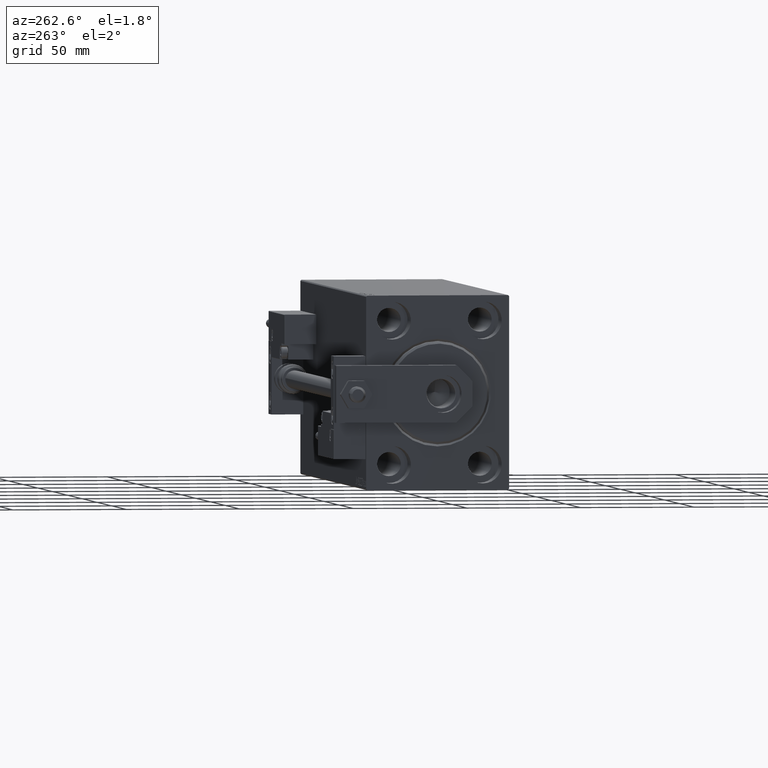
[diagram: clean part render]
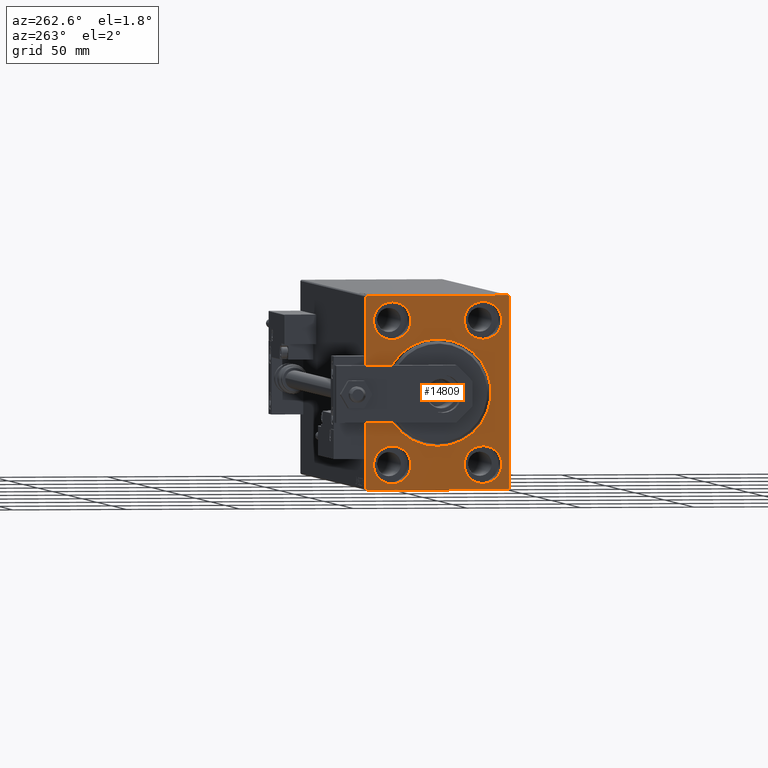
[diagram: same view with one face highlighted and labeled with its STEP entity id]
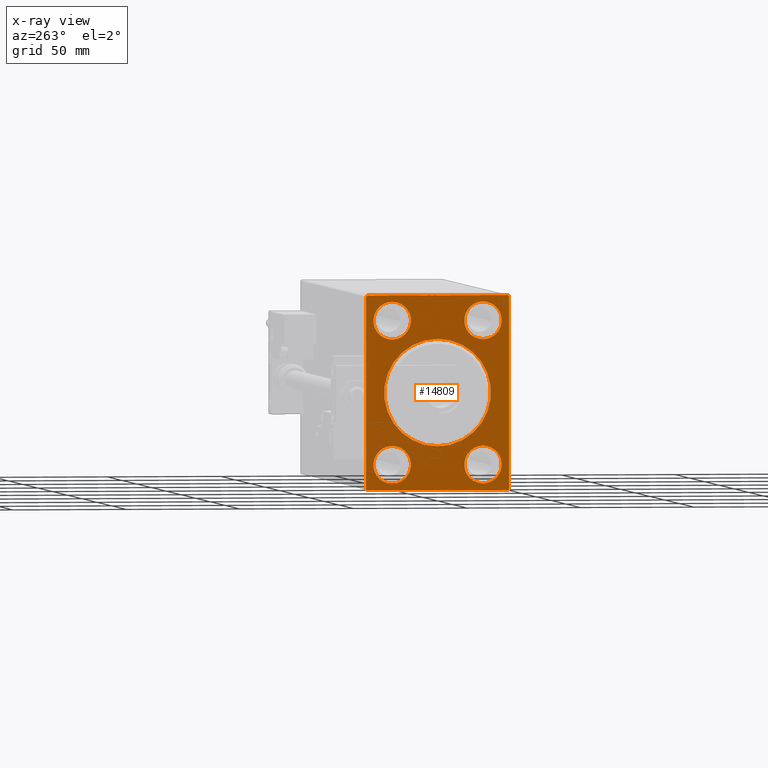
[diagram: x-ray of the same camera — body ghosted, the highlighted face saturated]
A machine part, auxiliary view. The second image highlights one B-rep face of the part: STEP entity #14809.
The next image is the same camera in x-ray: the body ghosted, the highlighted face saturated — about 0% of this face is hidden behind the body in this view.
In plain terms, the highlighted planar face has unit normal (1, 0, 0).
Its self-contained STEP definition (entity closure, byte-faithful):
#28 = ORIENTED_EDGE ( 'NONE', *, *, #15460, .F. ) ;
#555 = CARTESIAN_POINT ( 'NONE',  ( 0.000000000000000000, -31.50000000000000000, 41.99999999999996447 ) ) ;
#578 = AXIS2_PLACEMENT_3D ( 'NONE', #25392, #28918, #36520 ) ;
#850 = CARTESIAN_POINT ( 'NONE',  ( 0.000000000000000000, 31.50000000000000000, 42.50000000000000711 ) ) ;
#1586 = CARTESIAN_POINT ( 'NONE',  ( 0.000000000000000000, 0.000000000000000000, 23.50000000000001776 ) ) ;
#1648 = ORIENTED_EDGE ( 'NONE', *, *, #26885, .F. ) ;
#1669 = AXIS2_PLACEMENT_3D ( 'NONE', #20915, #9540, #13082 ) ;
#2335 = DIRECTION ( 'NONE',  ( 0.000000000000000000, 0.000000000000000000, 1.000000000000000000 ) ) ;
#2502 = DIRECTION ( 'NONE',  ( -1.000000000000000000, 0.000000000000000000, 0.000000000000000000 ) ) ;
#2617 = FACE_BOUND ( 'NONE', #8938, .T. ) ;
#4249 = DIRECTION ( 'NONE',  ( 1.000000000000000000, 0.000000000000000000, 0.000000000000000000 ) ) ;
#5209 = DIRECTION ( 'NONE',  ( 0.000000000000000000, 0.000000000000000000, 1.000000000000000000 ) ) ;
#5306 = DIRECTION ( 'NONE',  ( -0.000000000000000000, -0.7071067811865376918, 0.7071067811865574537 ) ) ;
#5322 = DIRECTION ( 'NONE',  ( -1.000000000000000000, 0.000000000000000000, 0.000000000000000000 ) ) ;
#5425 = LINE ( 'NONE', #39853, #38714 ) ;
#5881 = CARTESIAN_POINT ( 'NONE',  ( 0.000000000000000000, -31.50000000000000000, -41.99999999999999289 ) ) ;
#6444 = CARTESIAN_POINT ( 'NONE',  ( 0.000000000000000000, -20.00000000000000355, -39.74999999999999289 ) ) ;
#6827 = EDGE_CURVE ( 'NONE', #45040, #21046, #5425, .T. ) ;
#7356 = CIRCLE ( 'NONE', #27589, 8.250000000000000000 ) ;
#7618 = ORIENTED_EDGE ( 'NONE', *, *, #36232, .T. ) ;
#7732 = CARTESIAN_POINT ( 'NONE',  ( 0.000000000000000000, -30.99999999999997158, 42.49999999999999289 ) ) ;
#7924 = EDGE_LOOP ( 'NONE', ( #12468, #21613 ) ) ;
#8240 = CARTESIAN_POINT ( 'NONE',  ( 0.000000000000000000, -31.50000000000000000, 41.99999999999996447 ) ) ;
#8938 = EDGE_LOOP ( 'NONE', ( #1648, #33596 ) ) ;
#9030 = DIRECTION ( 'NONE',  ( 0.000000000000000000, 0.000000000000000000, -1.000000000000000000 ) ) ;
#9064 = CARTESIAN_POINT ( 'NONE',  ( 0.000000000000000000, -19.99999999999999645, 23.25000000000000355 ) ) ;
#9498 = CIRCLE ( 'NONE', #578, 8.250000000000000000 ) ;
#9540 = DIRECTION ( 'NONE',  ( -1.000000000000000000, 0.000000000000000000, 0.000000000000000000 ) ) ;
#9716 = AXIS2_PLACEMENT_3D ( 'NONE', #20239, #5322, #13387 ) ;
#9843 = CARTESIAN_POINT ( 'NONE',  ( 0.000000000000000000, -19.99999999999999645, 31.50000000000000000 ) ) ;
#9929 = EDGE_CURVE ( 'NONE', #41654, #32085, #21861, .T. ) ;
#10080 = EDGE_CURVE ( 'NONE', #45040, #28259, #39681, .T. ) ;
#10339 = VERTEX_POINT ( 'NONE', #1586 ) ;
#10361 = VERTEX_POINT ( 'NONE', #32461 ) ;
#10893 = VECTOR ( 'NONE', #35254, 1000.000000000000000 ) ;
#11048 = CIRCLE ( 'NONE', #40963, 8.249999999999992895 ) ;
#11340 = DIRECTION ( 'NONE',  ( 0.000000000000000000, 0.000000000000000000, 1.000000000000000000 ) ) ;
#12468 = ORIENTED_EDGE ( 'NONE', *, *, #34891, .F. ) ;
#12834 = CARTESIAN_POINT ( 'NONE',  ( 0.000000000000000000, 31.50000000000001421, -42.50000000000000711 ) ) ;
#13082 = DIRECTION ( 'NONE',  ( 0.000000000000000000, 0.000000000000000000, 1.000000000000000000 ) ) ;
#13342 = CARTESIAN_POINT ( 'NONE',  ( 0.000000000000000000, 31.00000000000000000, -42.50000000000000711 ) ) ;
#13387 = DIRECTION ( 'NONE',  ( 0.000000000000000000, 0.000000000000000000, 1.000000000000000000 ) ) ;
#13576 = EDGE_LOOP ( 'NONE', ( #42222, #49287 ) ) ;
#13718 = VECTOR ( 'NONE', #26656, 1000.000000000000000 ) ;
#14507 = CARTESIAN_POINT ( 'NONE',  ( 0.000000000000000000, 0.000000000000000000, 0.000000000000000000 ) ) ;
#14572 = VECTOR ( 'NONE', #28286, 1000.000000000000000 ) ;
#14809 = ADVANCED_FACE ( 'NONE', ( #28205, #37290, #28942, #48702, #2617, #44384 ), #21332, .F. ) ;
#15460 = EDGE_CURVE ( 'NONE', #34077, #46590, #26905, .T. ) ;
#15664 = CARTESIAN_POINT ( 'NONE',  ( 0.000000000000000000, 0.000000000000000000, 0.000000000000000000 ) ) ;
#15836 = CARTESIAN_POINT ( 'NONE',  ( 0.000000000000000000, 2.877919977996282293E-15, -23.50000000000001776 ) ) ;
#15905 = DIRECTION ( 'NONE',  ( 1.000000000000000000, 0.000000000000000000, 0.000000000000000000 ) ) ;
#15980 = CARTESIAN_POINT ( 'NONE',  ( 0.000000000000000000, -31.50000000000000000, -42.50000000000000711 ) ) ;
#16021 = VERTEX_POINT ( 'NONE', #7732 ) ;
#16166 = DIRECTION ( 'NONE',  ( 0.000000000000000000, 0.000000000000000000, -1.000000000000000000 ) ) ;
#16810 = VERTEX_POINT ( 'NONE', #36283 ) ;
#16954 = ORIENTED_EDGE ( 'NONE', *, *, #6827, .T. ) ;
#17009 = ORIENTED_EDGE ( 'NONE', *, *, #39090, .F. ) ;
#17180 = AXIS2_PLACEMENT_3D ( 'NONE', #34362, #46276, #11340 ) ;
#17299 = ORIENTED_EDGE ( 'NONE', *, *, #39452, .F. ) ;
#17942 = ORIENTED_EDGE ( 'NONE', *, *, #27407, .T. ) ;
#18437 = EDGE_LOOP ( 'NONE', ( #28, #17009 ) ) ;
#18497 = VERTEX_POINT ( 'NONE', #27011 ) ;
#19065 = CARTESIAN_POINT ( 'NONE',  ( 0.000000000000000000, 19.99999999999999645, -39.74999999999999289 ) ) ;
#20034 = AXIS2_PLACEMENT_3D ( 'NONE', #9843, #2502, #28340 ) ;
#20055 = LINE ( 'NONE', #850, #10893 ) ;
#20239 = CARTESIAN_POINT ( 'NONE',  ( 0.000000000000000000, -20.00000000000000355, -31.49999999999999289 ) ) ;
#20397 = EDGE_CURVE ( 'NONE', #18497, #16021, #20055, .T. ) ;
#20915 = CARTESIAN_POINT ( 'NONE',  ( 0.000000000000000000, -19.99999999999999645, 31.50000000000000000 ) ) ;
#20966 = CARTESIAN_POINT ( 'NONE',  ( 0.000000000000000000, -31.00000000000000000, -42.50000000000000711 ) ) ;
#21046 = VERTEX_POINT ( 'NONE', #13342 ) ;
#21325 = CARTESIAN_POINT ( 'NONE',  ( 0.000000000000000000, -19.99999999999999645, 39.74999999999999289 ) ) ;
#21332 = PLANE ( 'NONE',  #30948 ) ;
#21613 = ORIENTED_EDGE ( 'NONE', *, *, #46346, .F. ) ;
#21774 = CARTESIAN_POINT ( 'NONE',  ( 0.000000000000000000, 31.50000000000000000, 41.99999999999999289 ) ) ;
#21784 = CIRCLE ( 'NONE', #37133, 23.50000000000001776 ) ;
#21861 = CIRCLE ( 'NONE', #1669, 8.249999999999992895 ) ;
#22897 = ORIENTED_EDGE ( 'NONE', *, *, #20397, .F. ) ;
#23104 = EDGE_CURVE ( 'NONE', #47793, #16021, #28711, .T. ) ;
#24617 = VERTEX_POINT ( 'NONE', #46070 ) ;
#24930 = VERTEX_POINT ( 'NONE', #41195 ) ;
#25170 = VERTEX_POINT ( 'NONE', #15836 ) ;
#25392 = CARTESIAN_POINT ( 'NONE',  ( 0.000000000000000000, -20.00000000000000355, -31.49999999999999289 ) ) ;
#26656 = DIRECTION ( 'NONE',  ( 0.000000000000000000, 1.000000000000000000, 0.000000000000000000 ) ) ;
#26755 = LINE ( 'NONE', #50048, #45363 ) ;
#26885 = EDGE_CURVE ( 'NONE', #10361, #40138, #9498, .T. ) ;
#26905 = CIRCLE ( 'NONE', #17180, 8.250000000000000000 ) ;
#27011 = CARTESIAN_POINT ( 'NONE',  ( 0.000000000000000000, 31.00000000000000000, 42.50000000000000711 ) ) ;
#27407 = EDGE_CURVE ( 'NONE', #25170, #10339, #48274, .T. ) ;
#27589 = AXIS2_PLACEMENT_3D ( 'NONE', #33461, #29427, #2335 ) ;
#27677 = ORIENTED_EDGE ( 'NONE', *, *, #48519, .T. ) ;
#28205 = FACE_BOUND ( 'NONE', #49225, .T. ) ;
#28259 = VERTEX_POINT ( 'NONE', #21774 ) ;
#28286 = DIRECTION ( 'NONE',  ( 0.000000000000000000, -1.632680918566406300E-16, 1.000000000000000000 ) ) ;
#28337 = LINE ( 'NONE', #20966, #42826 ) ;
#28340 = DIRECTION ( 'NONE',  ( 0.000000000000000000, 0.000000000000000000, 1.000000000000000000 ) ) ;
#28472 = DIRECTION ( 'NONE',  ( -0.000000000000000000, 0.7071067811865474617, 0.7071067811865474617 ) ) ;
#28711 = LINE ( 'NONE', #8240, #48975 ) ;
#28918 = DIRECTION ( 'NONE',  ( -1.000000000000000000, 0.000000000000000000, 0.000000000000000000 ) ) ;
#28942 = FACE_BOUND ( 'NONE', #13576, .T. ) ;
#29400 = CARTESIAN_POINT ( 'NONE',  ( 0.000000000000000000, 31.00000000000000000, 42.50000000000000711 ) ) ;
#29427 = DIRECTION ( 'NONE',  ( -1.000000000000000000, 0.000000000000000000, 0.000000000000000000 ) ) ;
#29457 = EDGE_CURVE ( 'NONE', #32085, #41654, #44325, .T. ) ;
#30832 = DIRECTION ( 'NONE',  ( -0.000000000000000000, 0.7071067811865376918, -0.7071067811865574537 ) ) ;
#30947 = LINE ( 'NONE', #15980, #13718 ) ;
#30948 = AXIS2_PLACEMENT_3D ( 'NONE', #14507, #40841, #33484 ) ;
#31285 = DIRECTION ( 'NONE',  ( 0.000000000000000000, 0.000000000000000000, -1.000000000000000000 ) ) ;
#31786 = ORIENTED_EDGE ( 'NONE', *, *, #10080, .F. ) ;
#32085 = VERTEX_POINT ( 'NONE', #21325 ) ;
#32387 = EDGE_CURVE ( 'NONE', #24617, #21046, #30947, .T. ) ;
#32461 = CARTESIAN_POINT ( 'NONE',  ( 0.000000000000000000, -20.00000000000000355, -23.24999999999999289 ) ) ;
#32961 = CARTESIAN_POINT ( 'NONE',  ( 0.000000000000000000, 19.99999999999999645, -23.24999999999999289 ) ) ;
#33461 = CARTESIAN_POINT ( 'NONE',  ( 0.000000000000000000, 19.99999999999999645, -31.49999999999999289 ) ) ;
#33484 = DIRECTION ( 'NONE',  ( 0.000000000000000000, 0.000000000000000000, -1.000000000000000000 ) ) ;
#33596 = ORIENTED_EDGE ( 'NONE', *, *, #37909, .F. ) ;
#33711 = CARTESIAN_POINT ( 'NONE',  ( 0.000000000000000000, 31.50000000000001421, -42.00000000000000711 ) ) ;
#34077 = VERTEX_POINT ( 'NONE', #32961 ) ;
#34362 = CARTESIAN_POINT ( 'NONE',  ( 0.000000000000000000, 19.99999999999999645, -31.49999999999999289 ) ) ;
#34891 = EDGE_CURVE ( 'NONE', #16810, #24930, #41956, .T. ) ;
#35254 = DIRECTION ( 'NONE',  ( 0.000000000000000000, -1.000000000000000000, -2.202823461557850341E-16 ) ) ;
#35483 = AXIS2_PLACEMENT_3D ( 'NONE', #40330, #47944, #36535 ) ;
#35842 = EDGE_CURVE ( 'NONE', #10339, #25170, #21784, .T. ) ;
#36232 = EDGE_CURVE ( 'NONE', #24617, #48680, #28337, .T. ) ;
#36283 = CARTESIAN_POINT ( 'NONE',  ( 0.000000000000000000, 20.00000000000000355, 39.74999999999999289 ) ) ;
#36520 = DIRECTION ( 'NONE',  ( 0.000000000000000000, 0.000000000000000000, 1.000000000000000000 ) ) ;
#36535 = DIRECTION ( 'NONE',  ( 0.000000000000000000, 0.000000000000000000, 1.000000000000000000 ) ) ;
#36816 = CARTESIAN_POINT ( 'NONE',  ( 0.000000000000000000, 20.00000000000000355, 31.50000000000000000 ) ) ;
#37133 = AXIS2_PLACEMENT_3D ( 'NONE', #43708, #4249, #9030 ) ;
#37290 = FACE_BOUND ( 'NONE', #18437, .T. ) ;
#37909 = EDGE_CURVE ( 'NONE', #40138, #10361, #39641, .T. ) ;
#38714 = VECTOR ( 'NONE', #41294, 999.9999999999998863 ) ;
#39090 = EDGE_CURVE ( 'NONE', #46590, #34077, #7356, .T. ) ;
#39452 = EDGE_CURVE ( 'NONE', #47793, #48680, #26755, .T. ) ;
#39638 = DIRECTION ( 'NONE',  ( -1.000000000000000000, 0.000000000000000000, 0.000000000000000000 ) ) ;
#39641 = CIRCLE ( 'NONE', #9716, 8.250000000000000000 ) ;
#39681 = LINE ( 'NONE', #12834, #14572 ) ;
#39853 = CARTESIAN_POINT ( 'NONE',  ( 0.000000000000000000, 31.50000000000001421, -42.00000000000000711 ) ) ;
#40138 = VERTEX_POINT ( 'NONE', #6444 ) ;
#40330 = CARTESIAN_POINT ( 'NONE',  ( 0.000000000000000000, 20.00000000000000355, 31.50000000000000000 ) ) ;
#40841 = DIRECTION ( 'NONE',  ( 1.000000000000000000, 0.000000000000000000, 0.000000000000000000 ) ) ;
#40963 = AXIS2_PLACEMENT_3D ( 'NONE', #36816, #39638, #5209 ) ;
#41195 = CARTESIAN_POINT ( 'NONE',  ( 0.000000000000000000, 20.00000000000000355, 23.25000000000000355 ) ) ;
#41294 = DIRECTION ( 'NONE',  ( 0.000000000000000000, -0.7071067811865574537, -0.7071067811865376918 ) ) ;
#41615 = EDGE_LOOP ( 'NONE', ( #17299, #47796, #22897, #27677, #31786, #16954, #46236, #7618 ) ) ;
#41654 = VERTEX_POINT ( 'NONE', #9064 ) ;
#41956 = CIRCLE ( 'NONE', #35483, 8.249999999999992895 ) ;
#42222 = ORIENTED_EDGE ( 'NONE', *, *, #29457, .F. ) ;
#42826 = VECTOR ( 'NONE', #5306, 999.9999999999998863 ) ;
#43456 = VECTOR ( 'NONE', #30832, 999.9999999999998863 ) ;
#43708 = CARTESIAN_POINT ( 'NONE',  ( 0.000000000000000000, 0.000000000000000000, 0.000000000000000000 ) ) ;
#44325 = CIRCLE ( 'NONE', #20034, 8.249999999999992895 ) ;
#44384 = FACE_OUTER_BOUND ( 'NONE', #41615, .T. ) ;
#44404 = ORIENTED_EDGE ( 'NONE', *, *, #35842, .T. ) ;
#45040 = VERTEX_POINT ( 'NONE', #33711 ) ;
#45363 = VECTOR ( 'NONE', #31285, 1000.000000000000000 ) ;
#46070 = CARTESIAN_POINT ( 'NONE',  ( 0.000000000000000000, -31.00000000000000000, -42.50000000000000711 ) ) ;
#46236 = ORIENTED_EDGE ( 'NONE', *, *, #32387, .F. ) ;
#46276 = DIRECTION ( 'NONE',  ( -1.000000000000000000, 0.000000000000000000, 0.000000000000000000 ) ) ;
#46346 = EDGE_CURVE ( 'NONE', #24930, #16810, #11048, .T. ) ;
#46590 = VERTEX_POINT ( 'NONE', #19065 ) ;
#47793 = VERTEX_POINT ( 'NONE', #555 ) ;
#47796 = ORIENTED_EDGE ( 'NONE', *, *, #23104, .T. ) ;
#47944 = DIRECTION ( 'NONE',  ( -1.000000000000000000, 0.000000000000000000, 0.000000000000000000 ) ) ;
#48274 = CIRCLE ( 'NONE', #49129, 23.50000000000001776 ) ;
#48519 = EDGE_CURVE ( 'NONE', #18497, #28259, #48650, .T. ) ;
#48650 = LINE ( 'NONE', #29400, #43456 ) ;
#48680 = VERTEX_POINT ( 'NONE', #5881 ) ;
#48702 = FACE_BOUND ( 'NONE', #7924, .T. ) ;
#48975 = VECTOR ( 'NONE', #28472, 1000.000000000000114 ) ;
#49129 = AXIS2_PLACEMENT_3D ( 'NONE', #15664, #15905, #16166 ) ;
#49225 = EDGE_LOOP ( 'NONE', ( #44404, #17942 ) ) ;
#49287 = ORIENTED_EDGE ( 'NONE', *, *, #9929, .F. ) ;
#50048 = CARTESIAN_POINT ( 'NONE',  ( 0.000000000000000000, -31.50000000000000000, 42.49999999999999289 ) ) ;